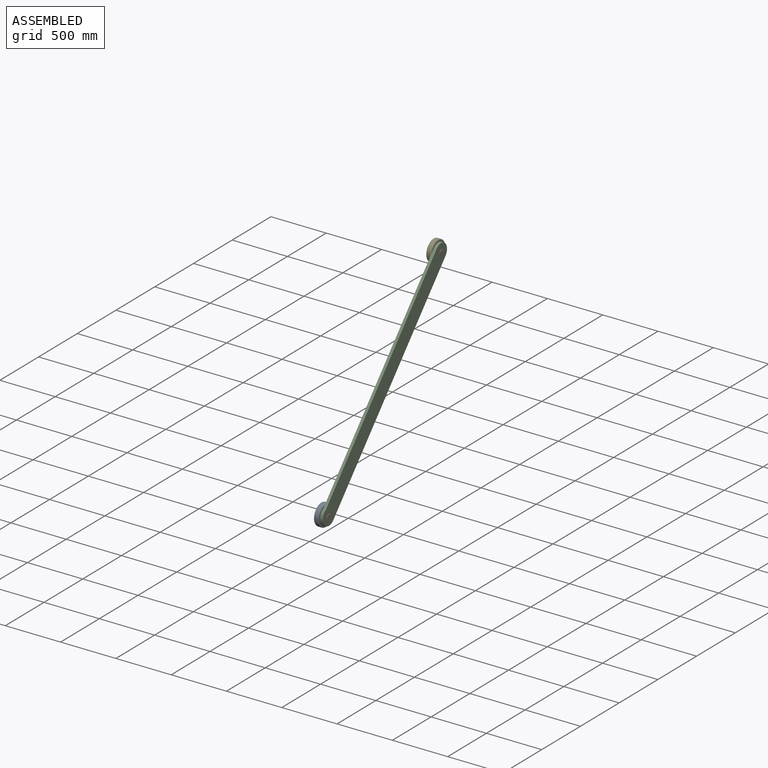
[diagram: assembled view]
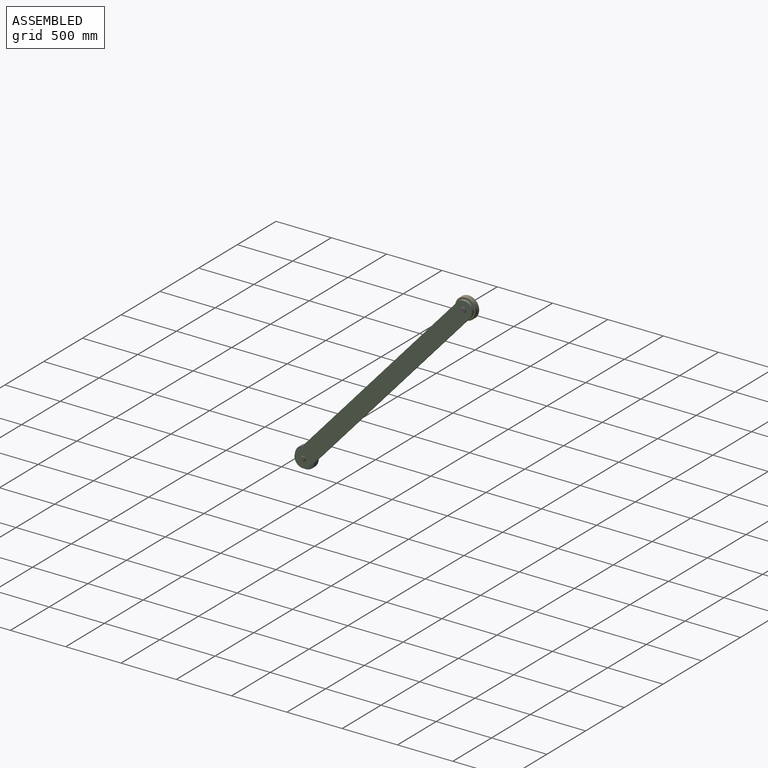
[diagram: assembled view, second angle]
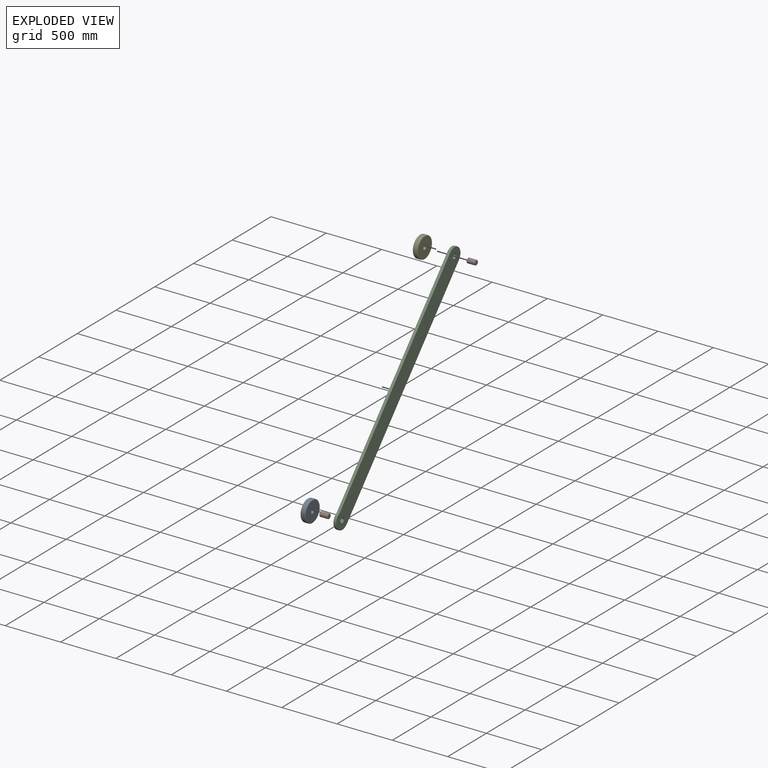
[diagram: exploded view]
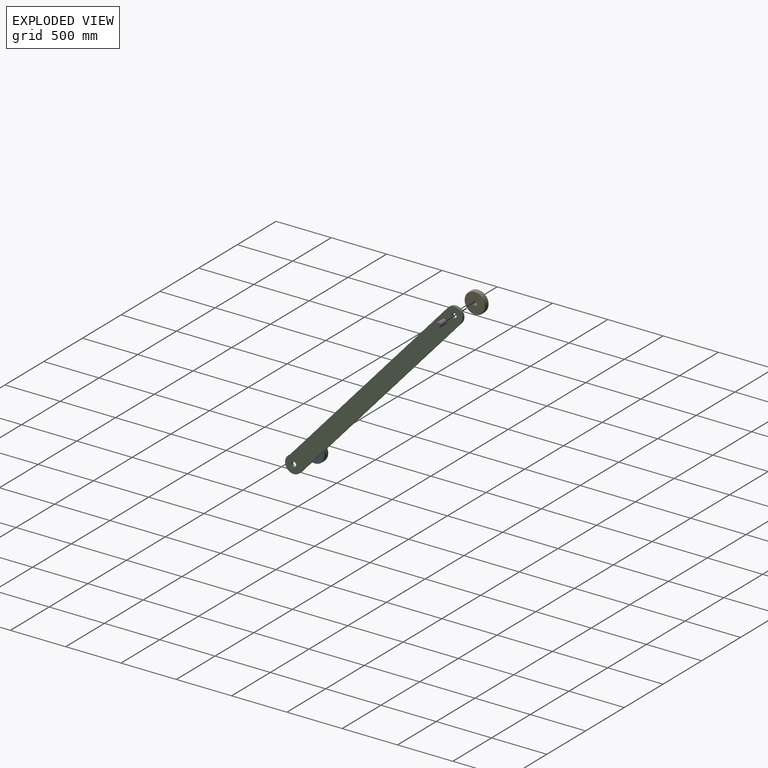
[diagram: exploded view, second angle]
ASSEMBLY  parts=5 mates=4
PART A: 6 faces, bbox 44.5x206.2x206.2 mm
  f0: cylinder r=19.05mm len=44.45mm, axis (-1,0,0), area 5320.4mm2, adj f2,f3
  f1: cylinder r=95.25mm len=190.5mm, axis (-1,0,0), area 20521.7mm2, adj f4,f5
  f2: plane 180.34x180.34mm, normal (1,0,0), area 24403mm2, adj f0,f5
  f3: plane 180.34x180.34mm, normal (-1,0,0), area 24403mm2, adj f0,f4
  f4: torus R=90.17mm, axis (1,0,0), area 4683.1mm2, adj f1,f3
  f5: torus R=90.17mm, axis (1,0,0), area 4683.1mm2, adj f1,f2
PART B: 5 faces, bbox 76.2x44.3x44.3 mm
  f0: cylinder r=22.16mm len=69.85mm, axis (-1,0,0), area 9726.3mm2, adj f3,f4
  f1: plane 37.97x37.97mm, normal (1,0,0), area 1132.5mm2, adj f3
  f2: plane 37.97x37.97mm, normal (-1,0,0), area 1132.5mm2, adj f4
  f3: cone r=18.99mm half-angle=45deg, axis (-1,0,0), area 580.4mm2, adj f0,f1
  f4: cone r=22.16mm half-angle=45deg, axis (1,0,0), area 580.4mm2, adj f0,f2
PART C: 8 faces, bbox 25.4x1604.8x1758.1 mm
  f0: plane 1604.82x1447.96mm, normal (0,0.74,-0.67), area 54901.8mm2, adj f1,f5,f6,f7
  f1: cylinder r=76.2mm len=132.78mm, axis (-1,0,0), area 6080.5mm2, adj f0,f2,f6,f7
  f2: plane 1584.11x1429.28mm, normal (0,-0.74,0.67), area 54193.4mm2, adj f1,f5,f6,f7
  f3: cylinder r=22.23mm len=44.45mm, axis (-1,0,0), area 3547mm2, adj f6,f7
  f4: cylinder r=22.23mm len=44.45mm, axis (-1,0,0), area 3547mm2, adj f6,f7
  f5: cylinder r=78.75mm len=148.79mm, axis (-1,0,0), area 7008.1mm2, adj f0,f2,f6,f7
  f6: plane 1758.06x1604.8mm, normal (1,0,0), area 345265mm2, adj f0,f1,f2,f3,f4,f5
  f7: plane 1758.06x1604.8mm, normal (-1,0,0), area 345265mm2, adj f0,f1,f2,f3,f4,f5
PART D: same geometry as B
PART E: same geometry as A
PLACE A t=(-44.45,-786.05,-738.33)mm
PLACE B t=(-47.62,-786.05,-738.33)mm
PLACE C at identity
PLACE D t=(-47.62,663.8,864.78)mm
PLACE E t=(-44.45,663.8,864.78)mm
MATE revolute A.f0 <-> B.f0  axis (-1,0,0) through (-44.45,-786.05,-738.33)mm
MATE revolute D.f0 <-> C.f1  axis (1,0,0) through (25.4,663.8,864.78)mm
MATE revolute D.f0 <-> E.f0  axis (-1,0,0) through (-44.45,663.8,864.78)mm
MATE revolute B.f0 <-> C.f4  axis (-1,0,0) through (25.4,-786.05,-738.33)mm
